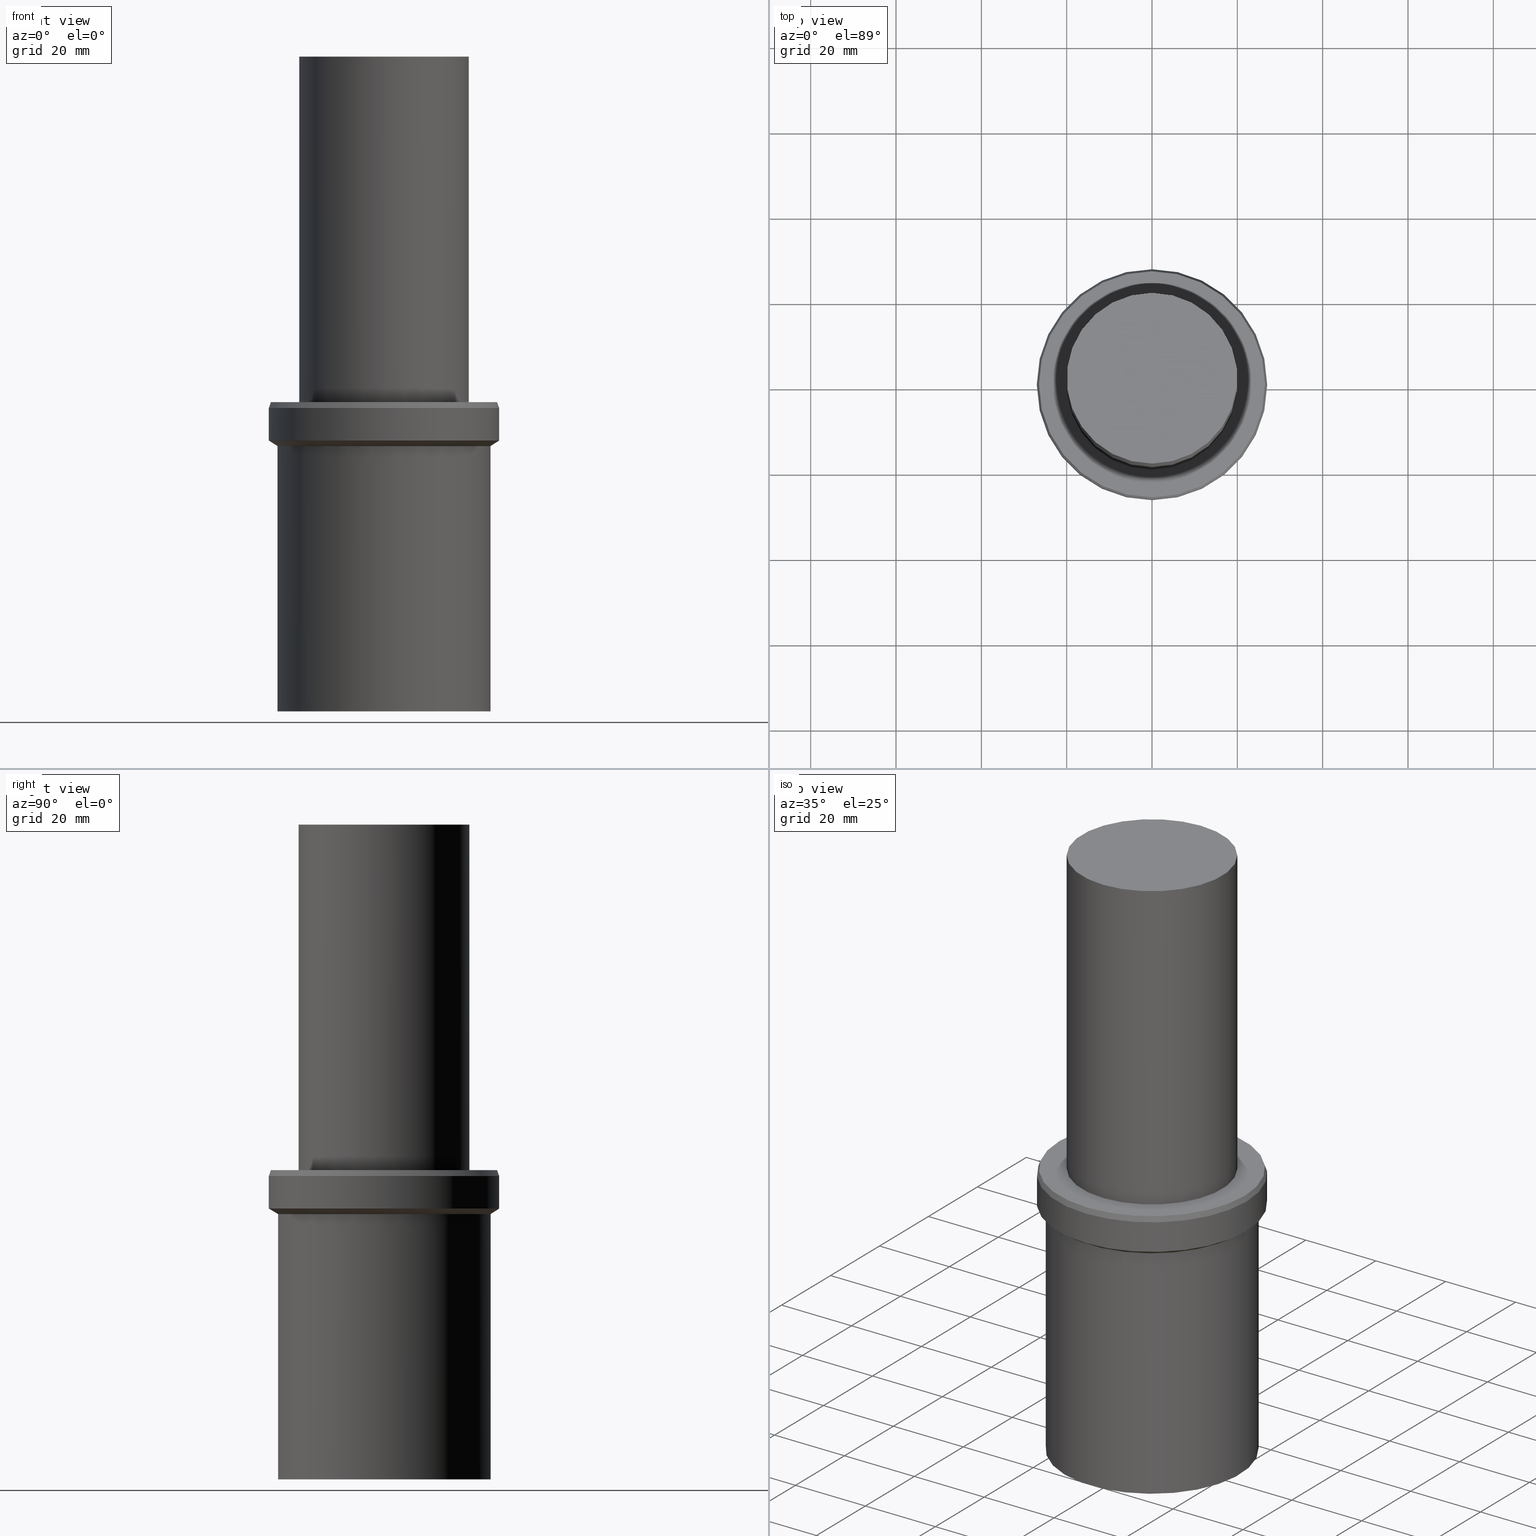
[diagram: canonical four-view strip — front | top / right | iso, engineering-drawing reading convention]
A machine part, canonical four-view strip (front | top / right | iso — engineering-drawing reading convention). The complete STEP part file that produces these views, byte-faithful:
ISO-10303-21;
HEADER;
FILE_DESCRIPTION((''),'1');
FILE_NAME('V:/02_3D_Field-HP\X2\FF71FF6FFF8CFF9F5916\X0\2013/02_Step_Field-HP\X2\FF71FF6FFF8CFF9F5916\X0\2013/31_\X2\30E130AC30B730F330AF30ED30BF30C330D430F330B030DB30EB30C0\X0\ MGT/MGT_ANSI_STEP/MGT36-AU1.1_4-2.5.stp','2018-02-02T01:25:03',(''),(''),'Spatial Interop R21 SP3','Kubotek KeyCreator 2011 V10.0.2 (22737)',' ');
FILE_SCHEMA(('automotive_design'));
ENDSEC;
DATA;
#1=MECHANICAL_DESIGN_GEOMETRIC_PRESENTATION_REPRESENTATION(' ',(#10,#11,#12,#13,#14,#15,#16,#17,#18,#19,#20,#21,#22,#23,#24,#25),#6);
#2=PRODUCT_DEFINITION_CONTEXT('',#26,'design');
#3=APPLICATION_PROTOCOL_DEFINITION('INTERNATIONAL STANDARD','automotive_design',1994,#26);
#4=PRODUCT_CATEGORY_RELATIONSHIP('NONE','NONE',#27,#28);
#5=SHAPE_DEFINITION_REPRESENTATION(#29,#30);
#6= (GEOMETRIC_REPRESENTATION_CONTEXT(3)GLOBAL_UNCERTAINTY_ASSIGNED_CONTEXT((#33))GLOBAL_UNIT_ASSIGNED_CONTEXT((#35,#36,#37))REPRESENTATION_CONTEXT('NONE','WORKSPACE'));
#10=STYLED_ITEM('',(#39),#40);
#11=STYLED_ITEM('',(#41,#42),#43);
#12=STYLED_ITEM('',(#44),#45);
#13=STYLED_ITEM('',(#46),#47);
#14=STYLED_ITEM('',(#48,#49),#50);
#15=STYLED_ITEM('',(#51,#52),#53);
#16=STYLED_ITEM('',(#54,#55),#56);
#17=STYLED_ITEM('',(#57,#58),#59);
#18=STYLED_ITEM('',(#60,#61),#62);
#19=STYLED_ITEM('',(#63,#64),#65);
#20=STYLED_ITEM('',(#66,#67),#68);
#21=STYLED_ITEM('',(#69),#70);
#22=STYLED_ITEM('',(#71),#72);
#23=STYLED_ITEM('',(#73,#74),#75);
#24=STYLED_ITEM('',(#76),#77);
#25=STYLED_ITEM('',(#78),#79);
#26=APPLICATION_CONTEXT(' ');
#27=PRODUCT_CATEGORY('part','NONE');
#28=PRODUCT_RELATED_PRODUCT_CATEGORY('detail',' ',(#80));
#29=PRODUCT_DEFINITION_SHAPE('NONE','NONE',#81);
#30=ADVANCED_BREP_SHAPE_REPRESENTATION('Unnamed[1]',(#65,#82),#6);
#33=UNCERTAINTY_MEASURE_WITH_UNIT(LENGTH_MEASURE(1.0E-006),#35,'','');
#35= (CONVERSION_BASED_UNIT('MILLIMETRE',#85)LENGTH_UNIT()NAMED_UNIT(#88));
#36= (NAMED_UNIT(#90)PLANE_ANGLE_UNIT()SI_UNIT($,.RADIAN.));
#37= (NAMED_UNIT(#90)SOLID_ANGLE_UNIT()SI_UNIT($,.STERADIAN.));
#39=PRESENTATION_STYLE_ASSIGNMENT((#96));
#40=EDGE_CURVE('Unnamed[1]',#97,#97,#98,.T.);
#41=PRESENTATION_STYLE_ASSIGNMENT((#99));
#42=PRESENTATION_STYLE_ASSIGNMENT((#100));
#43=ADVANCED_FACE('Unnamed[1]',(#101,#102),#103,.T.);
#44=PRESENTATION_STYLE_ASSIGNMENT((#104));
#45=EDGE_CURVE('Unnamed[1]',#105,#105,#106,.T.);
#46=PRESENTATION_STYLE_ASSIGNMENT((#107));
#47=EDGE_CURVE('Unnamed[1]',#108,#108,#109,.T.);
#48=PRESENTATION_STYLE_ASSIGNMENT((#110));
#49=PRESENTATION_STYLE_ASSIGNMENT((#111));
#50=ADVANCED_FACE('Unnamed[1]',(#112),#113,.T.);
#51=PRESENTATION_STYLE_ASSIGNMENT((#114));
#52=PRESENTATION_STYLE_ASSIGNMENT((#115));
#53=ADVANCED_FACE('Unnamed[1]',(#116),#117,.T.);
#54=PRESENTATION_STYLE_ASSIGNMENT((#118));
#55=PRESENTATION_STYLE_ASSIGNMENT((#119));
#56=ADVANCED_FACE('Unnamed[1]',(#120,#121),#122,.T.);
#57=PRESENTATION_STYLE_ASSIGNMENT((#123));
#58=PRESENTATION_STYLE_ASSIGNMENT((#124));
#59=ADVANCED_FACE('Unnamed[1]',(#125,#126),#127,.T.);
#60=PRESENTATION_STYLE_ASSIGNMENT((#128));
#61=PRESENTATION_STYLE_ASSIGNMENT((#129));
#62=ADVANCED_FACE('Unnamed[1]',(#130,#131),#132,.T.);
#63=PRESENTATION_STYLE_ASSIGNMENT((#133));
#64=PRESENTATION_STYLE_ASSIGNMENT((#134));
#65=MANIFOLD_SOLID_BREP('Unnamed[1]',#135);
#66=PRESENTATION_STYLE_ASSIGNMENT((#136));
#67=PRESENTATION_STYLE_ASSIGNMENT((#137));
#68=ADVANCED_FACE('Unnamed[1]',(#138,#139),#140,.T.);
#69=PRESENTATION_STYLE_ASSIGNMENT((#141));
#70=EDGE_CURVE('Unnamed[1]',#142,#142,#143,.T.);
#71=PRESENTATION_STYLE_ASSIGNMENT((#144));
#72=EDGE_CURVE('Unnamed[1]',#145,#145,#146,.T.);
#73=PRESENTATION_STYLE_ASSIGNMENT((#147));
#74=PRESENTATION_STYLE_ASSIGNMENT((#148));
#75=ADVANCED_FACE('Unnamed[1]',(#149,#150),#151,.T.);
#76=PRESENTATION_STYLE_ASSIGNMENT((#152));
#77=EDGE_CURVE('Unnamed[1]',#153,#153,#154,.T.);
#78=PRESENTATION_STYLE_ASSIGNMENT((#155));
#79=EDGE_CURVE('Unnamed[1]',#156,#156,#157,.T.);
#80=PRODUCT('Unnamed[1]','Unnamed[1]','PART-Unnamed[1]-DESC',(#158));
#81=PRODUCT_DEFINITION('NONE','NONE',#159,#2);
#82=AXIS2_PLACEMENT_3D('',#160,#161,#162);
#85=LENGTH_MEASURE_WITH_UNIT(LENGTH_MEASURE(1.0),#163);
#88=DIMENSIONAL_EXPONENTS(1.0,0.0,0.0,0.0,0.0,0.0,0.0);
#90=DIMENSIONAL_EXPONENTS(0.0,0.0,0.0,0.0,0.0,0.0,0.0);
#96=CURVE_STYLE('',#164,POSITIVE_LENGTH_MEASURE(1000.0),#165);
#97=VERTEX_POINT('',#166);
#98=CIRCLE('',#167,20.0000000000027);
#99=SURFACE_STYLE_USAGE(.BOTH.,#168);
#100=CURVE_STYLE('',#169,POSITIVE_LENGTH_MEASURE(1000.0),#170);
#101=FACE_BOUND('',#171,.T.);
#102=FACE_BOUND('',#172,.T.);
#103=CYLINDRICAL_SURFACE('',#173,20.0000000000027);
#104=CURVE_STYLE('',#174,POSITIVE_LENGTH_MEASURE(1000.0),#175);
#105=VERTEX_POINT('',#176);
#106=CIRCLE('',#177,26.9999999999945);
#107=CURVE_STYLE('',#178,POSITIVE_LENGTH_MEASURE(1000.0),#179);
#108=VERTEX_POINT('',#180);
#109=CIRCLE('',#181,25.000000000004);
#110=SURFACE_STYLE_USAGE(.BOTH.,#182);
#111=CURVE_STYLE('',#183,POSITIVE_LENGTH_MEASURE(1000.0),#184);
#112=FACE_OUTER_BOUND('',#185,.T.);
#113=PLANE('',#186);
#114=SURFACE_STYLE_USAGE(.BOTH.,#187);
#115=CURVE_STYLE('',#188,POSITIVE_LENGTH_MEASURE(1000.0),#189);
#116=FACE_OUTER_BOUND('',#190,.T.);
#117=PLANE('',#191);
#118=SURFACE_STYLE_USAGE(.BOTH.,#192);
#119=CURVE_STYLE('',#193,POSITIVE_LENGTH_MEASURE(1000.0),#194);
#120=FACE_BOUND('',#195,.T.);
#121=FACE_BOUND('',#196,.T.);
#122=CONICAL_SURFACE('',#197,25.9999999999993,0.993288242785374);
#123=SURFACE_STYLE_USAGE(.BOTH.,#198);
#124=CURVE_STYLE('',#199,POSITIVE_LENGTH_MEASURE(1000.0),#200);
#125=FACE_BOUND('',#201,.T.);
#126=FACE_BOUND('',#202,.T.);
#127=CYLINDRICAL_SURFACE('',#203,24.999999999998);
#128=SURFACE_STYLE_USAGE(.BOTH.,#204);
#129=CURVE_STYLE('',#205,POSITIVE_LENGTH_MEASURE(1000.0),#206);
#130=FACE_BOUND('',#207,.T.);
#131=FACE_BOUND('',#208,.T.);
#132=CONICAL_SURFACE('',#209,26.7499999999955,0.349065850398426);
#133=SURFACE_STYLE_USAGE(.BOTH.,#210);
#134=CURVE_STYLE('',#211,POSITIVE_LENGTH_MEASURE(1000.0),#212);
#135=CLOSED_SHELL('',(#50,#43,#75,#62,#68,#56,#59,#53));
#136=SURFACE_STYLE_USAGE(.BOTH.,#213);
#137=CURVE_STYLE('',#214,POSITIVE_LENGTH_MEASURE(1000.0),#215);
#138=FACE_BOUND('',#216,.T.);
#139=FACE_BOUND('',#217,.T.);
#140=CYLINDRICAL_SURFACE('',#218,26.9999999999945);
#141=CURVE_STYLE('',#219,POSITIVE_LENGTH_MEASURE(1000.0),#220);
#142=VERTEX_POINT('',#221);
#143=CIRCLE('',#222,26.9999999999945);
#144=CURVE_STYLE('',#223,POSITIVE_LENGTH_MEASURE(1000.0),#224);
#145=VERTEX_POINT('',#225);
#146=CIRCLE('',#226,20.0000000000027);
#147=SURFACE_STYLE_USAGE(.BOTH.,#227);
#148=CURVE_STYLE('',#228,POSITIVE_LENGTH_MEASURE(1000.0),#229);
#149=FACE_OUTER_BOUND('',#230,.T.);
#150=FACE_BOUND('',#231,.T.);
#151=PLANE('',#232);
#152=CURVE_STYLE('',#233,POSITIVE_LENGTH_MEASURE(1000.0),#234);
#153=VERTEX_POINT('',#235);
#154=CIRCLE('',#236,24.9999999999919);
#155=CURVE_STYLE('',#237,POSITIVE_LENGTH_MEASURE(1000.0),#238);
#156=VERTEX_POINT('',#239);
#157=CIRCLE('',#240,26.4999999999965);
#158=PRODUCT_CONTEXT('',#26,'mechanical');
#159=PRODUCT_DEFINITION_FORMATION_WITH_SPECIFIED_SOURCE(' ','NONE',#80,.NOT_KNOWN.);
#160=CARTESIAN_POINT('',(0.0,0.0,0.0));
#161=DIRECTION('',(0.0,0.0,1.0));
#162=DIRECTION('',(1.0,0.0,0.0));
#163= (NAMED_UNIT(#88)LENGTH_UNIT()SI_UNIT(.MILLI.,.METRE.));
#164=DRAUGHTING_PRE_DEFINED_CURVE_FONT('continuous');
#165=COLOUR_RGB('',0.0,1.0,0.0);
#166=CARTESIAN_POINT('',(-9.39916418345635E-015,20.0000000000027,153.500000000007));
#167=AXIS2_PLACEMENT_3D('',#242,#243,#244);
#168=SURFACE_SIDE_STYLE('',(#245));
#169=DRAUGHTING_PRE_DEFINED_CURVE_FONT('continuous');
#170=COLOUR_RGB('',0.0,1.0,0.0);
#171=EDGE_LOOP('',(#246));
#172=EDGE_LOOP('',(#247));
#173=AXIS2_PLACEMENT_3D('',#248,#249,#250);
#174=DRAUGHTING_PRE_DEFINED_CURVE_FONT('continuous');
#175=COLOUR_RGB('',0.0,1.0,0.0);
#176=CARTESIAN_POINT('',(-3.88825358729306E-015,26.9999999999945,63.5000000000035));
#177=AXIS2_PLACEMENT_3D('',#251,#252,#253);
#178=DRAUGHTING_PRE_DEFINED_CURVE_FONT('continuous');
#179=COLOUR_RGB('',0.0,1.0,0.0);
#180=CARTESIAN_POINT('',(-3.80845404822236E-015,25.000000000004,62.1967746271653));
#181=AXIS2_PLACEMENT_3D('',#254,#255,#256);
#182=SURFACE_SIDE_STYLE('',(#257));
#183=DRAUGHTING_PRE_DEFINED_CURVE_FONT('continuous');
#184=COLOUR_RGB('',0.0,1.0,0.0);
#185=EDGE_LOOP('',(#258));
#186=AXIS2_PLACEMENT_3D('',#259,#260,#261);
#187=SURFACE_SIDE_STYLE('',(#262));
#188=DRAUGHTING_PRE_DEFINED_CURVE_FONT('continuous');
#189=COLOUR_RGB('',0.0,1.0,0.0);
#190=EDGE_LOOP('',(#263));
#191=AXIS2_PLACEMENT_3D('',#264,#265,#266);
#192=SURFACE_SIDE_STYLE('',(#267));
#193=DRAUGHTING_PRE_DEFINED_CURVE_FONT('continuous');
#194=COLOUR_RGB('',0.0,1.0,0.0);
#195=EDGE_LOOP('',(#268));
#196=EDGE_LOOP('',(#269));
#197=AXIS2_PLACEMENT_3D('',#270,#271,#272);
#198=SURFACE_SIDE_STYLE('',(#273));
#199=DRAUGHTING_PRE_DEFINED_CURVE_FONT('continuous');
#200=COLOUR_RGB('',0.0,1.0,0.0);
#201=EDGE_LOOP('',(#274));
#202=EDGE_LOOP('',(#275));
#203=AXIS2_PLACEMENT_3D('',#276,#277,#278);
#204=SURFACE_SIDE_STYLE('',(#279));
#205=DRAUGHTING_PRE_DEFINED_CURVE_FONT('continuous');
#206=COLOUR_RGB('',0.0,1.0,0.0);
#207=EDGE_LOOP('',(#280));
#208=EDGE_LOOP('',(#281));
#209=AXIS2_PLACEMENT_3D('',#282,#283,#284);
#210=SURFACE_SIDE_STYLE('',(#285));
#211=DRAUGHTING_PRE_DEFINED_CURVE_FONT('continuous');
#212=COLOUR_RGB('',0.0,1.0,0.0);
#213=SURFACE_SIDE_STYLE('',(#286));
#214=DRAUGHTING_PRE_DEFINED_CURVE_FONT('continuous');
#215=COLOUR_RGB('',0.0,1.0,0.0);
#216=EDGE_LOOP('',(#287));
#217=EDGE_LOOP('',(#288));
#218=AXIS2_PLACEMENT_3D('',#289,#290,#291);
#219=DRAUGHTING_PRE_DEFINED_CURVE_FONT('continuous');
#220=COLOUR_RGB('',0.0,1.0,0.0);
#221=CARTESIAN_POINT('',(-4.35522741122323E-015,26.9999999999945,71.126261290284));
#222=AXIS2_PLACEMENT_3D('',#292,#293,#294);
#223=DRAUGHTING_PRE_DEFINED_CURVE_FONT('continuous');
#224=COLOUR_RGB('',0.0,1.0,0.0);
#225=CARTESIAN_POINT('',(-4.43934464690963E-015,20.0000000000027,72.5000000000077));
#226=AXIS2_PLACEMENT_3D('',#295,#296,#297);
#227=SURFACE_SIDE_STYLE('',(#298));
#228=DRAUGHTING_PRE_DEFINED_CURVE_FONT('continuous');
#229=COLOUR_RGB('',0.0,1.0,0.0);
#230=EDGE_LOOP('',(#299));
#231=EDGE_LOOP('',(#300));
#232=AXIS2_PLACEMENT_3D('',#301,#302,#303);
#233=DRAUGHTING_PRE_DEFINED_CURVE_FONT('continuous');
#234=COLOUR_RGB('',0.0,1.0,0.0);
#235=CARTESIAN_POINT('',(0.0,24.9999999999919,0.0));
#236=AXIS2_PLACEMENT_3D('',#304,#305,#306);
#237=DRAUGHTING_PRE_DEFINED_CURVE_FONT('continuous');
#238=COLOUR_RGB('',0.0,1.0,0.0);
#239=CARTESIAN_POINT('',(-4.43934464690963E-015,26.4999999999965,72.5000000000077));
#240=AXIS2_PLACEMENT_3D('',#307,#308,#309);
#242=CARTESIAN_POINT('',(-9.39916418345635E-015,-1.87983283669127E-014,153.500000000007));
#243=DIRECTION('',(6.12323399573677E-017,1.22464679914735E-016,-1.0));
#244=DIRECTION('',(-1.23259516440783E-032,1.0,1.22464679914735E-016));
#245=SURFACE_STYLE_FILL_AREA(#310);
#246=ORIENTED_EDGE('',*,*,#72,.F.);
#247=ORIENTED_EDGE('',*,*,#40,.T.);
#248=CARTESIAN_POINT('',(-6.91925441518298E-015,-1.3838508830366E-014,113.000000000007));
#249=DIRECTION('',(6.12323399573677E-017,1.22464679914735E-016,-1.0));
#250=DIRECTION('',(-1.23259516440783E-032,1.0,1.22464679914735E-016));
#251=CARTESIAN_POINT('',(-3.88825358729306E-015,-7.77650717458613E-015,63.5000000000035));
#252=DIRECTION('',(6.12323399573677E-017,1.22464679914735E-016,-1.0));
#253=DIRECTION('',(-1.23259516440783E-032,1.0,1.22464679914735E-016));
#254=CARTESIAN_POINT('',(-3.80845404822236E-015,-7.61690809644472E-015,62.1967746271653));
#255=DIRECTION('',(6.12323399573677E-017,1.22464679914735E-016,-1.0));
#256=DIRECTION('',(-1.23259516440783E-032,1.0,1.22464679914735E-016));
#257=SURFACE_STYLE_FILL_AREA(#311);
#258=ORIENTED_EDGE('',*,*,#40,.F.);
#259=CARTESIAN_POINT('',(-9.39916418345637E-015,10.0000000000013,153.500000000007));
#260=DIRECTION('',(-6.12323399573677E-017,4.81944413517655E-014,1.0));
#261=DIRECTION('',(-2.94623126417595E-030,-1.0,4.81944413517655E-014));
#262=SURFACE_STYLE_FILL_AREA(#312);
#263=ORIENTED_EDGE('',*,*,#77,.T.);
#264=CARTESIAN_POINT('',(-2.03526113547021E-028,12.499999999996,3.31823457599967E-012));
#265=DIRECTION('',(6.12323399573677E-017,-2.65052084305841E-013,-1.0));
#266=DIRECTION('',(1.62249321798933E-029,1.0,-2.65052084305841E-013));
#267=SURFACE_STYLE_FILL_AREA(#313);
#268=ORIENTED_EDGE('',*,*,#47,.F.);
#269=ORIENTED_EDGE('',*,*,#45,.T.);
#270=CARTESIAN_POINT('',(-3.84835381775771E-015,-7.69670763551542E-015,62.8483873135844));
#271=DIRECTION('',(-6.12323399573676E-017,-1.22464679914735E-016,1.0));
#272=DIRECTION('',(-1.23259516440783E-032,1.0,1.22464679914735E-016));
#273=SURFACE_STYLE_FILL_AREA(#314);
#274=ORIENTED_EDGE('',*,*,#77,.F.);
#275=ORIENTED_EDGE('',*,*,#47,.T.);
#276=CARTESIAN_POINT('',(-1.90422702411118E-015,-3.80845404822236E-015,31.0983873135826));
#277=DIRECTION('',(6.12323399573677E-017,1.22464679914735E-016,-1.0));
#278=DIRECTION('',(-1.23259516440783E-032,1.0,1.22464679914735E-016));
#279=SURFACE_STYLE_FILL_AREA(#315);
#280=ORIENTED_EDGE('',*,*,#70,.F.);
#281=ORIENTED_EDGE('',*,*,#79,.T.);
#282=CARTESIAN_POINT('',(-4.39728602906643E-015,-8.79457205813285E-015,71.8131306451458));
#283=DIRECTION('',(6.12323399573677E-017,1.22464679914735E-016,-1.0));
#284=DIRECTION('',(-1.23259516440783E-032,1.0,1.22464679914735E-016));
#285=SURFACE_STYLE_FILL_AREA(#316);
#286=SURFACE_STYLE_FILL_AREA(#317);
#287=ORIENTED_EDGE('',*,*,#45,.F.);
#288=ORIENTED_EDGE('',*,*,#70,.T.);
#289=CARTESIAN_POINT('',(-4.12174049925815E-015,-8.24348099851629E-015,67.3131306451438));
#290=DIRECTION('',(6.12323399573677E-017,1.22464679914735E-016,-1.0));
#291=DIRECTION('',(-1.23259516440783E-032,1.0,1.22464679914735E-016));
#292=CARTESIAN_POINT('',(-4.35522741122323E-015,-8.71045482244646E-015,71.126261290284));
#293=DIRECTION('',(6.12323399573677E-017,1.22464679914735E-016,-1.0));
#294=DIRECTION('',(-1.23259516440783E-032,1.0,1.22464679914735E-016));
#295=CARTESIAN_POINT('',(-4.43934464690962E-015,-8.87868929381925E-015,72.5000000000077));
#296=DIRECTION('',(6.12323399573677E-017,1.22464679914735E-016,-1.0));
#297=DIRECTION('',(-1.23259516440783E-032,1.0,1.22464679914735E-016));
#298=SURFACE_STYLE_FILL_AREA(#318);
#299=ORIENTED_EDGE('',*,*,#79,.F.);
#300=ORIENTED_EDGE('',*,*,#72,.T.);
#301=CARTESIAN_POINT('',(-4.43934464690963E-015,23.2499999999996,72.5000000000077));
#302=DIRECTION('',(-6.12323399573677E-017,-2.03546435311683E-015,1.0));
#303=DIRECTION('',(1.29463397971922E-031,-1.0,-2.03546435311683E-015));
#304=CARTESIAN_POINT('',(0.0,0.0,0.0));
#305=DIRECTION('',(6.12323399573677E-017,1.22464679914735E-016,-1.0));
#306=DIRECTION('',(-1.23259516440783E-032,1.0,1.22464679914735E-016));
#307=CARTESIAN_POINT('',(-4.43934464690963E-015,-8.87868929381925E-015,72.5000000000077));
#308=DIRECTION('',(6.12323399573676E-017,1.22464679914735E-016,-1.0));
#309=DIRECTION('',(-1.23259516440783E-032,1.0,1.22464679914735E-016));
#310=FILL_AREA_STYLE('',(#319));
#311=FILL_AREA_STYLE('',(#320));
#312=FILL_AREA_STYLE('',(#321));
#313=FILL_AREA_STYLE('',(#322));
#314=FILL_AREA_STYLE('',(#323));
#315=FILL_AREA_STYLE('',(#324));
#316=FILL_AREA_STYLE('',(#325));
#317=FILL_AREA_STYLE('',(#326));
#318=FILL_AREA_STYLE('',(#327));
#319=FILL_AREA_STYLE_COLOUR('',#328);
#320=FILL_AREA_STYLE_COLOUR('',#329);
#321=FILL_AREA_STYLE_COLOUR('',#330);
#322=FILL_AREA_STYLE_COLOUR('',#331);
#323=FILL_AREA_STYLE_COLOUR('',#332);
#324=FILL_AREA_STYLE_COLOUR('',#333);
#325=FILL_AREA_STYLE_COLOUR('',#334);
#326=FILL_AREA_STYLE_COLOUR('',#335);
#327=FILL_AREA_STYLE_COLOUR('',#336);
#328=COLOUR_RGB('',0.0,1.0,0.0);
#329=COLOUR_RGB('',0.0,1.0,0.0);
#330=COLOUR_RGB('',0.0,1.0,0.0);
#331=COLOUR_RGB('',0.0,1.0,0.0);
#332=COLOUR_RGB('',0.0,1.0,0.0);
#333=COLOUR_RGB('',0.0,1.0,0.0);
#334=COLOUR_RGB('',0.0,1.0,0.0);
#335=COLOUR_RGB('',0.0,1.0,0.0);
#336=COLOUR_RGB('',0.0,1.0,0.0);
ENDSEC;
END-ISO-10303-21;
